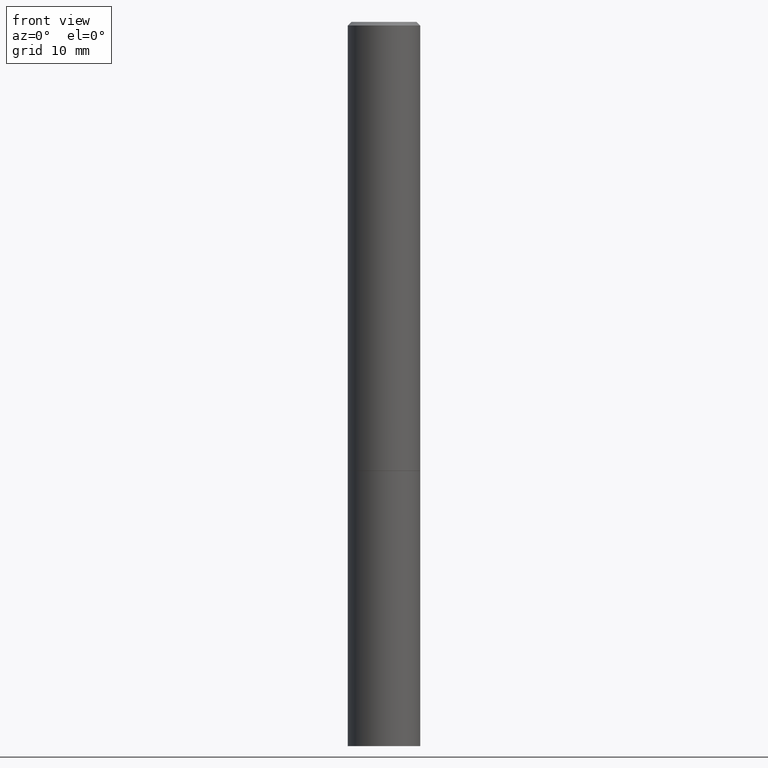
[diagram: clean part render]
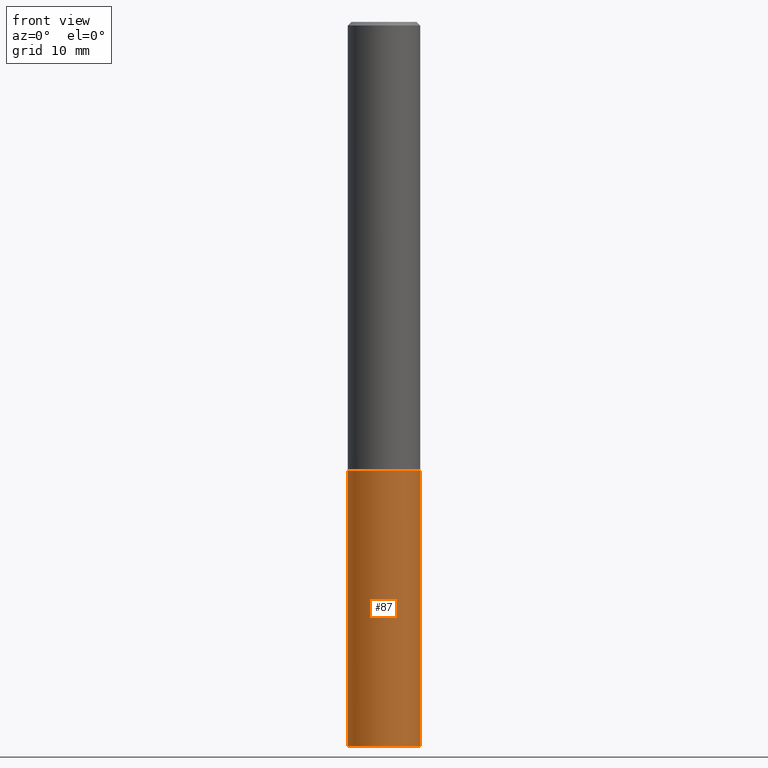
[diagram: same view with one face highlighted and labeled with its STEP entity id]
A machine part, front view. The second image highlights one B-rep face of the part: STEP entity #87.
In plain terms, the highlighted cylindrical surface (edge-blend (fillet) strip) has radius 5 mm, axis along (-0, 0, 1).
Its self-contained STEP definition (entity closure, byte-faithful):
#5 = AXIS2_PLACEMENT_3D ( 'NONE', #144, #346, #306 ) ;
#11 = EDGE_CURVE ( 'NONE', #57, #206, #218, .T. ) ;
#22 = CYLINDRICAL_SURFACE ( 'NONE', #123, 0.1968500000000000250 ) ;
#24 = CARTESIAN_POINT ( 'NONE',  ( -0.1968500000000000250, -9.735456040160091980E-15, -3.937000000000000277 ) ) ;
#29 = AXIS2_PLACEMENT_3D ( 'NONE', #130, #363, #138 ) ;
#40 = EDGE_LOOP ( 'NONE', ( #134, #347, #189, #364 ) ) ;
#57 = VERTEX_POINT ( 'NONE', #24 ) ;
#64 = EDGE_CURVE ( 'NONE', #256, #353, #69, .T. ) ;
#69 = LINE ( 'NONE', #270, #75 ) ;
#75 = VECTOR ( 'NONE', #295, 39.37007874015748143 ) ;
#87 = ADVANCED_FACE ( 'NONE', ( #240 ), #22, .T. ) ;
#99 = CARTESIAN_POINT ( 'NONE',  ( -0.1968500000000000250, 1.398703375343757393E-15, -9.682923725166783677E-30 ) ) ;
#107 = CARTESIAN_POINT ( 'NONE',  ( 0.1968500000000000250, -9.896953003084774574E-15, -2.440900000000000070 ) ) ;
#123 = AXIS2_PLACEMENT_3D ( 'NONE', #127, #298, #357 ) ;
#127 = CARTESIAN_POINT ( 'NONE',  ( 0.000000000000000000, 0.000000000000000000, 0.000000000000000000 ) ) ;
#130 = CARTESIAN_POINT ( 'NONE',  ( 5.969144809017299038E-29, -8.522356799982232966E-15, -2.440900000000000070 ) ) ;
#132 = CARTESIAN_POINT ( 'NONE',  ( 0.1968500000000000250, -1.512055823412800660E-14, -3.937000000000000277 ) ) ;
#134 = ORIENTED_EDGE ( 'NONE', *, *, #11, .F. ) ;
#138 = DIRECTION ( 'NONE',  ( 1.000000000000000000, -6.982962677686262766E-15, 0.000000000000000000 ) ) ;
#144 = CARTESIAN_POINT ( 'NONE',  ( 9.627810689950883669E-29, -1.374596203102546341E-14, -3.937000000000000277 ) ) ;
#178 = DIRECTION ( 'NONE',  ( -2.445468806185136877E-29, 3.491481338843145188E-15, 1.000000000000000000 ) ) ;
#189 = ORIENTED_EDGE ( 'NONE', *, *, #64, .T. ) ;
#196 = EDGE_CURVE ( 'NONE', #206, #353, #312, .T. ) ;
#206 = VERTEX_POINT ( 'NONE', #304 ) ;
#218 = LINE ( 'NONE', #99, #281 ) ;
#225 = CIRCLE ( 'NONE', #5, 0.1968500000000000250 ) ;
#240 = FACE_OUTER_BOUND ( 'NONE', #40, .T. ) ;
#256 = VERTEX_POINT ( 'NONE', #132 ) ;
#270 = CARTESIAN_POINT ( 'NONE',  ( 0.1968500000000000250, -1.374596203102541608E-15, 9.598753983154300858E-30 ) ) ;
#281 = VECTOR ( 'NONE', #178, 39.37007874015748143 ) ;
#295 = DIRECTION ( 'NONE',  ( -2.445468806185136877E-29, 3.491481338843145188E-15, 1.000000000000000000 ) ) ;
#298 = DIRECTION ( 'NONE',  ( -2.445468806185136597E-29, 3.491481338843145583E-15, 1.000000000000000000 ) ) ;
#304 = CARTESIAN_POINT ( 'NONE',  ( -0.1968500000000000250, -9.735456040160091980E-15, -2.440900000000000070 ) ) ;
#306 = DIRECTION ( 'NONE',  ( 1.000000000000000000, -6.982962677686267499E-15, 0.000000000000000000 ) ) ;
#312 = CIRCLE ( 'NONE', #29, 0.1968500000000000250 ) ;
#335 = EDGE_CURVE ( 'NONE', #57, #256, #225, .T. ) ;
#346 = DIRECTION ( 'NONE',  ( -2.445468806185136597E-29, 3.491481338843145583E-15, 1.000000000000000000 ) ) ;
#347 = ORIENTED_EDGE ( 'NONE', *, *, #335, .T. ) ;
#353 = VERTEX_POINT ( 'NONE', #107 ) ;
#357 = DIRECTION ( 'NONE',  ( 1.000000000000000000, -6.982962677686265922E-15, 4.876176775795935793E-29 ) ) ;
#363 = DIRECTION ( 'NONE',  ( -2.445468806185136597E-29, 3.491481338843145583E-15, 1.000000000000000000 ) ) ;
#364 = ORIENTED_EDGE ( 'NONE', *, *, #196, .F. ) ;